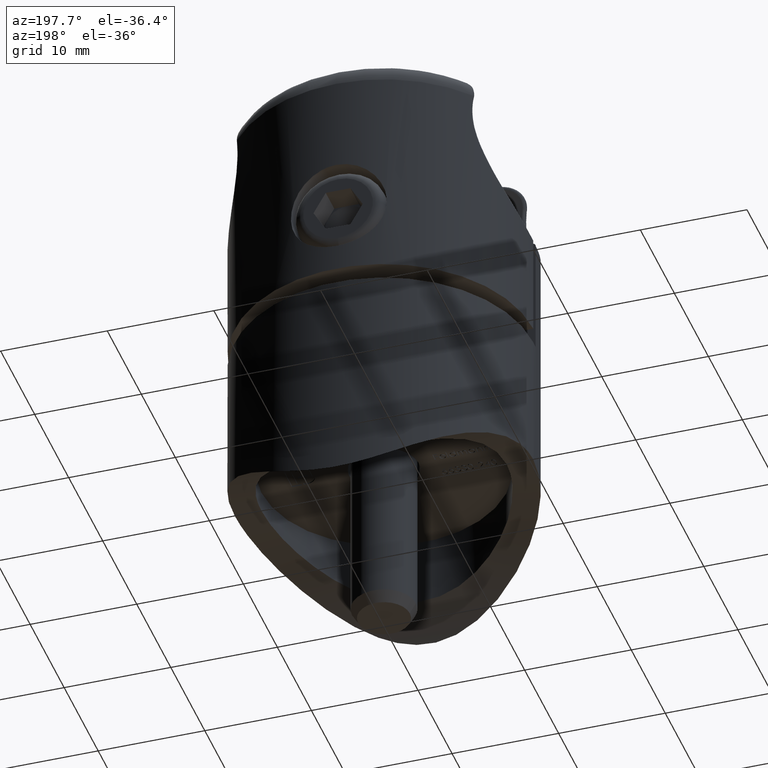
[diagram: clean part render]
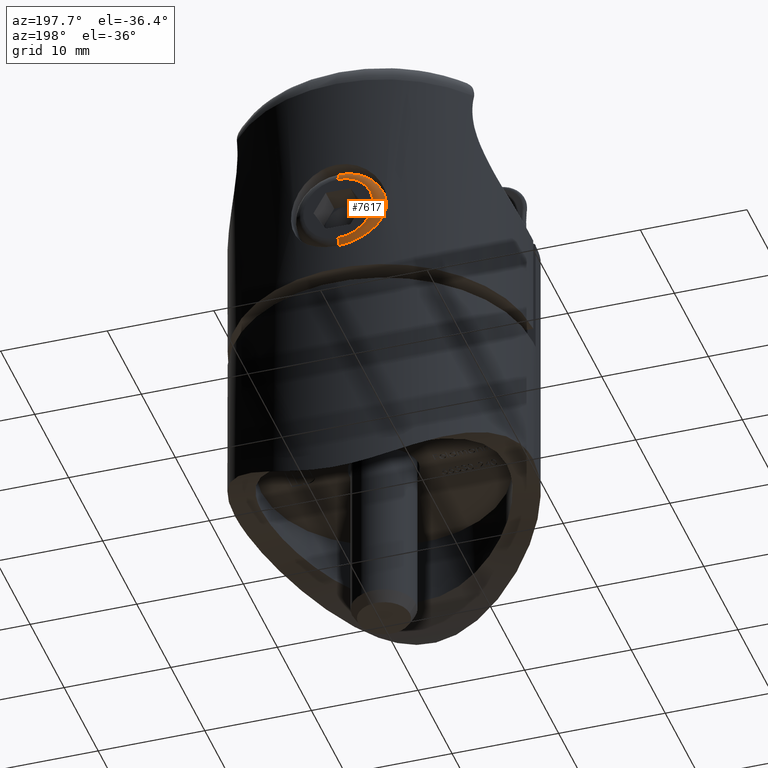
[diagram: same view with one face highlighted and labeled with its STEP entity id]
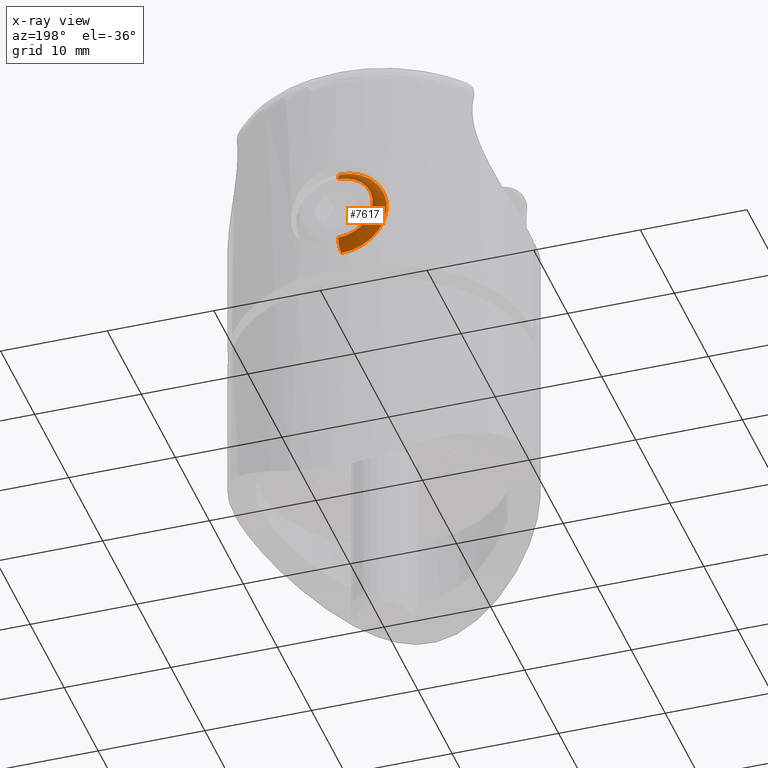
[diagram: x-ray of the same camera — body ghosted, the highlighted face saturated]
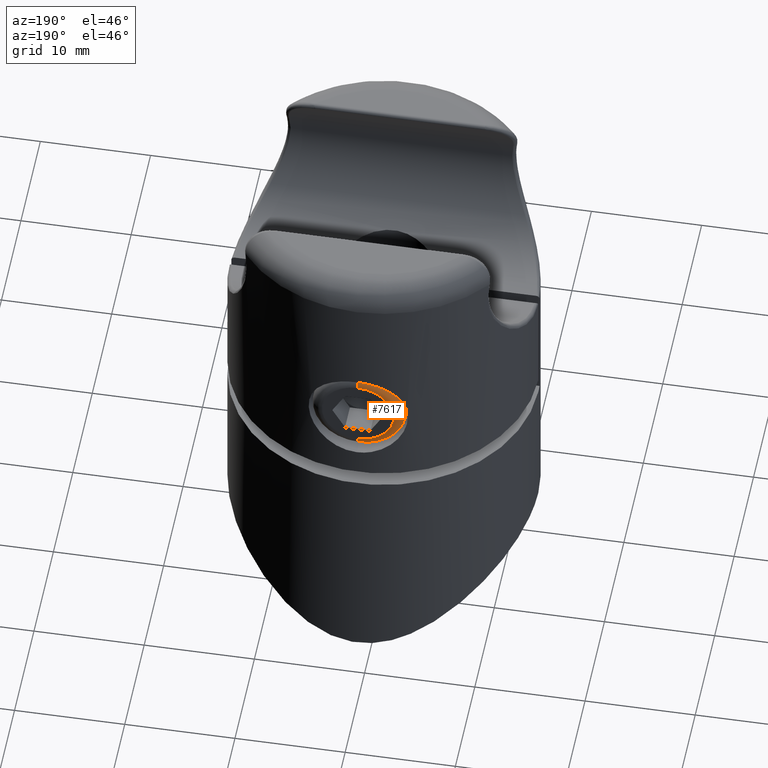
[diagram: same view with one face highlighted and labeled with its STEP entity id]
A machine part, auxiliary view. The second image highlights one B-rep face of the part: STEP entity #7617.
The next image is the same camera in x-ray: the body ghosted, the highlighted face saturated — about 0% of this face is hidden behind the body in this view.
A second angle (auxiliary view) of the same face is appended — the face is thin or edge-on in the first view.
In plain terms, the highlighted toroidal blend (fillet) surface has major radius 3.25 mm and minor (blend) radius 1 mm.
Its self-contained STEP definition (entity closure, byte-faithful):
#84 = CARTESIAN_POINT ( 'NONE',  ( 0.000000000000000000, 4.000000000000003553, 0.000000000000000000 ) ) ;
#181 = CARTESIAN_POINT ( 'NONE',  ( 0.000000000000000000, 5.000000000000004441, 3.250000000000000444 ) ) ;
#702 = CARTESIAN_POINT ( 'NONE',  ( 4.592425496802572986E-16, 5.000000000000004441, -3.250000000000000444 ) ) ;
#1072 = FACE_OUTER_BOUND ( 'NONE', #20219, .T. ) ;
#1095 = CARTESIAN_POINT ( 'NONE',  ( 3.980102097228898231E-16, 4.000000000000003553, -3.250000000000000444 ) ) ;
#1756 = DIRECTION ( 'NONE',  ( 0.000000000000000000, 0.000000000000000000, 1.000000000000000000 ) ) ;
#1917 = VERTEX_POINT ( 'NONE', #702 ) ;
#2502 = EDGE_CURVE ( 'NONE', #17489, #19699, #16673, .T. ) ;
#2503 = ORIENTED_EDGE ( 'NONE', *, *, #5733, .T. ) ;
#3027 = EDGE_CURVE ( 'NONE', #1917, #17602, #17676, .T. ) ;
#4765 = DIRECTION ( 'NONE',  ( -1.000000000000000000, 0.000000000000000000, 0.000000000000000000 ) ) ;
#4767 = DIRECTION ( 'NONE',  ( 1.224646799147352961E-16, 0.000000000000000000, -1.000000000000000000 ) ) ;
#5733 = EDGE_CURVE ( 'NONE', #17489, #17602, #18365, .T. ) ;
#7617 = ADVANCED_FACE ( 'NONE', ( #1072 ), #16843, .T. ) ;
#8103 = AXIS2_PLACEMENT_3D ( 'NONE', #84, #14596, #1756 ) ;
#9108 = DIRECTION ( 'NONE',  ( -0.000000000000000000, -1.000000000000000000, -0.000000000000000000 ) ) ;
#9462 = DIRECTION ( 'NONE',  ( 0.000000000000000000, 1.000000000000000000, 0.000000000000000000 ) ) ;
#10313 = CIRCLE ( 'NONE', #10984, 1.000000000000000000 ) ;
#10765 = CARTESIAN_POINT ( 'NONE',  ( 0.000000000000000000, 4.000000000000003553, 0.000000000000000000 ) ) ;
#10984 = AXIS2_PLACEMENT_3D ( 'NONE', #1095, #12297, #4767 ) ;
#11203 = CARTESIAN_POINT ( 'NONE',  ( 0.000000000000000000, 4.000000000000003553, 3.250000000000000444 ) ) ;
#11267 = AXIS2_PLACEMENT_3D ( 'NONE', #10765, #9108, #13716 ) ;
#12297 = DIRECTION ( 'NONE',  ( 1.000000000000000000, -0.000000000000000000, 1.224646799147353207E-16 ) ) ;
#13716 = DIRECTION ( 'NONE',  ( 0.000000000000000000, 0.000000000000000000, 1.000000000000000000 ) ) ;
#14596 = DIRECTION ( 'NONE',  ( 0.000000000000000000, 1.000000000000000000, 0.000000000000000000 ) ) ;
#14754 = ORIENTED_EDGE ( 'NONE', *, *, #3027, .F. ) ;
#14947 = EDGE_CURVE ( 'NONE', #19699, #1917, #10313, .T. ) ;
#15529 = CARTESIAN_POINT ( 'NONE',  ( 5.204748896376252671E-16, 4.000000000000003553, 4.250000000000000000 ) ) ;
#15971 = DIRECTION ( 'NONE',  ( 0.000000000000000000, 0.000000000000000000, 1.000000000000000000 ) ) ;
#16134 = ORIENTED_EDGE ( 'NONE', *, *, #2502, .F. ) ;
#16240 = AXIS2_PLACEMENT_3D ( 'NONE', #17434, #9462, #20628 ) ;
#16274 = ORIENTED_EDGE ( 'NONE', *, *, #14947, .F. ) ;
#16673 = CIRCLE ( 'NONE', #11267, 4.250000000000000000 ) ;
#16843 = TOROIDAL_SURFACE ( 'NONE', #8103, 3.250000000000000444, 1.000000000000000000 ) ;
#16913 = CARTESIAN_POINT ( 'NONE',  ( 0.000000000000000000, 4.000000000000003553, -4.250000000000000000 ) ) ;
#17434 = CARTESIAN_POINT ( 'NONE',  ( 0.000000000000000000, 5.000000000000004441, 0.000000000000000000 ) ) ;
#17489 = VERTEX_POINT ( 'NONE', #15529 ) ;
#17602 = VERTEX_POINT ( 'NONE', #181 ) ;
#17676 = CIRCLE ( 'NONE', #16240, 3.250000000000000444 ) ;
#18365 = CIRCLE ( 'NONE', #19324, 1.000000000000000000 ) ;
#19324 = AXIS2_PLACEMENT_3D ( 'NONE', #11203, #4765, #15971 ) ;
#19699 = VERTEX_POINT ( 'NONE', #16913 ) ;
#20219 = EDGE_LOOP ( 'NONE', ( #16274, #16134, #2503, #14754 ) ) ;
#20628 = DIRECTION ( 'NONE',  ( 0.000000000000000000, 0.000000000000000000, 1.000000000000000000 ) ) ;